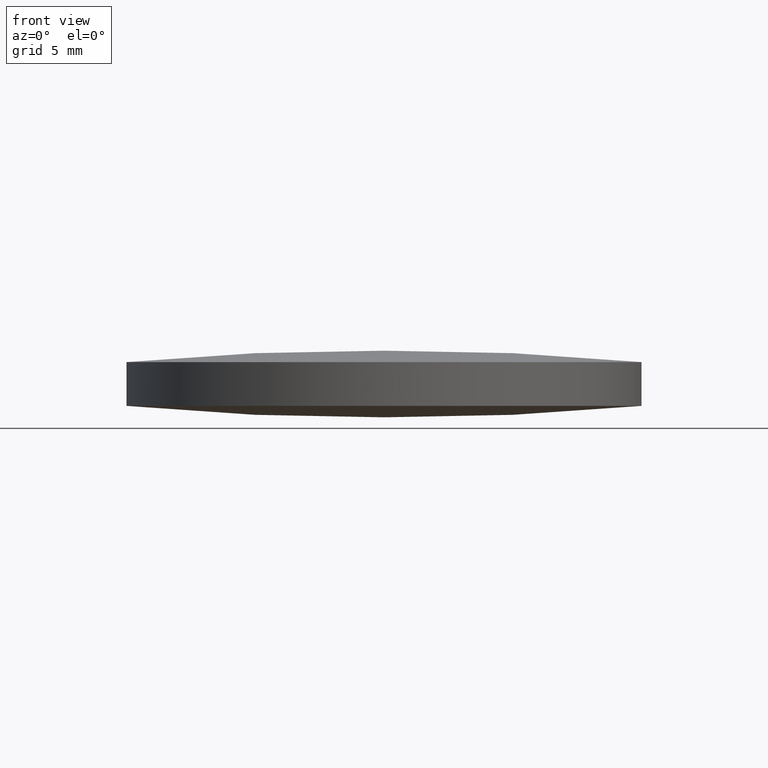
[diagram: clean part render]
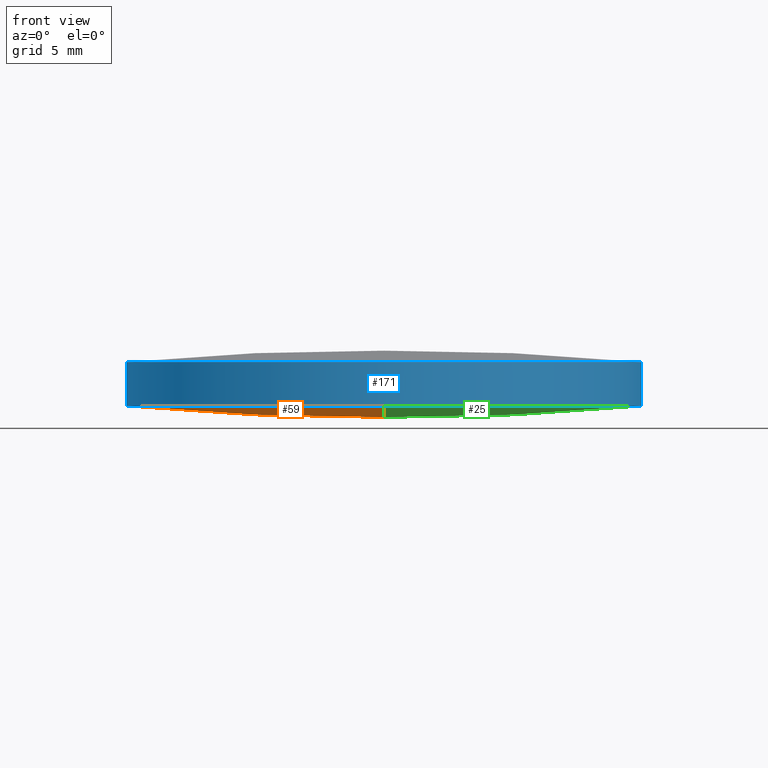
[diagram: same view with three faces highlighted in distinct colors, each labeled with its STEP entity id]
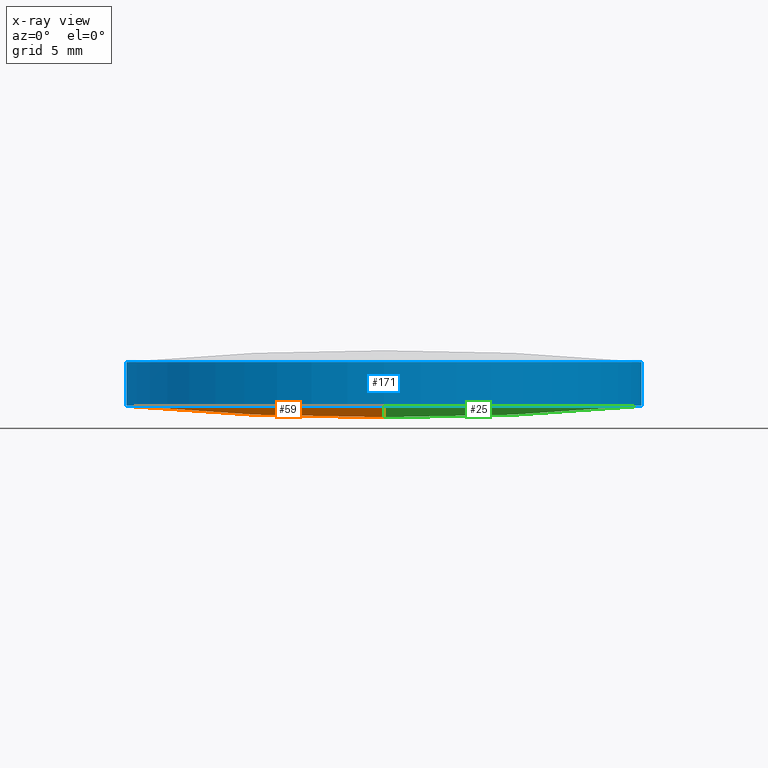
[diagram: x-ray of the same camera — body ghosted, the three highlighted faces saturated]
A machine part, front view with three faces highlighted in distinct colors.
The next image is the same camera in x-ray (body ghosted, the three faces saturated) — at least one of them is partly hidden behind the body in this view.
Their STEP definitions:

[orange] entity #59 — the highlighted face is a freeform B-spline surface patch.
#6 = CARTESIAN_POINT ( 'NONE',  ( -12.73626367471861600, -19.27793817985586200, 1.197211413003954200 ) ) ;
#12 = CARTESIAN_POINT ( 'NONE',  ( 1.422473250300982100E-013, 6.444724679720232000, -0.3013374258179613000 ) ) ;
#13 = CARTESIAN_POINT ( 'NONE',  ( -19.19192373488753800, -6.444724679720267500, 0.5906956180220642700 ) ) ;
#18 =( BOUNDED_SURFACE ( )  B_SPLINE_SURFACE ( 3, 3, ( 
 ( #174, #6, #205, #259 ),
 ( #13, #261, #287, #131 ),
 ( #207, #229, #184, #12 ),
 ( #159, #132, #155, #67 ) ),
 .UNSPECIFIED., .F., .F., .T. ) 
 B_SPLINE_SURFACE_WITH_KNOTS ( ( 4, 4 ),
 ( 4, 4 ),
 ( 0.0000000000000000000, 1.000000000000000000 ),
 ( 0.0000000000000000000, 1.000000000000000000 ),
 .UNSPECIFIED. ) 
 GEOMETRIC_REPRESENTATION_ITEM ( )  RATIONAL_B_SPLINE_SURFACE ( (
 ( 1.000000000000000000, 0.9992810467765541600, 0.9992810467765541600, 1.000000000000000000),
 ( 0.9970913751375676300, 0.9963745130793424400, 0.9963745130793424400, 0.9970913751375676300),
 ( 0.9970913751375676300, 0.9963745130793424400, 0.9963745130793424400, 0.9970913751375676300),
 ( 1.000000000000000000, 0.9992810467765541600, 0.9992810467765541600, 1.000000000000000000) ) ) 
 REPRESENTATION_ITEM ( '' )  SURFACE ( )  );
#26 = DIRECTION ( 'NONE',  ( 1.000000000000000000, 0.0000000000000000000, -5.691349986800548400E-018 ) ) ;
#34 = VERTEX_POINT ( 'NONE', #128 ) ;
#38 = CARTESIAN_POINT ( 'NONE',  ( 1.884043759237314700E-013, 19.04999999999994700, 0.8801480167750022100 ) ) ;
#59 = ADVANCED_FACE ( 'NONE', ( #216 ), #18, .T. ) ;
#67 = CARTESIAN_POINT ( 'NONE',  ( 1.353084311261909500E-013, 19.27793817985582700, 0.9013828448677929700 ) ) ;
#76 = ORIENTED_EDGE ( 'NONE', *, *, #91, .T. ) ;
#88 = CIRCLE ( 'NONE', #204, 206.5999999999999900 ) ;
#91 = EDGE_CURVE ( 'NONE', #103, #249, #289, .T. ) ;
#103 = VERTEX_POINT ( 'NONE', #106 ) ;
#106 = CARTESIAN_POINT ( 'NONE',  ( -19.05000000000000400, 1.444773732675583000E-015, 0.8801480167750092000 ) ) ;
#114 = EDGE_CURVE ( 'NONE', #34, #249, #88, .T. ) ;
#122 = CIRCLE ( 'NONE', #158, 19.05000000000000100 ) ;
#128 = CARTESIAN_POINT ( 'NONE',  ( 1.991220114042387200E-013, -19.05000000000000400, 0.8801480167750022100 ) ) ;
#131 = CARTESIAN_POINT ( 'NONE',  ( 1.491862189340054100E-013, -6.444724679720261300, -0.3013374258179558100 ) ) ;
#132 = CARTESIAN_POINT ( 'NONE',  ( -12.73626367471863000, 19.27793817985582700, 1.197211413003954000 ) ) ;
#138 = EDGE_LOOP ( 'NONE', ( #246, #188, #76 ) ) ;
#140 = DIRECTION ( 'NONE',  ( 1.000000000000000000, 0.0000000000000000000, -5.691349986800548400E-018 ) ) ;
#155 = CARTESIAN_POINT ( 'NONE',  ( -6.371567481593718400, 19.27793817985582300, 0.9013828448677914100 ) ) ;
#158 = AXIS2_PLACEMENT_3D ( 'NONE', #223, #197, #26 ) ;
#159 = CARTESIAN_POINT ( 'NONE',  ( -19.08036082284170100, 19.27793817985582300, 1.788230488568326400 ) ) ;
#174 = CARTESIAN_POINT ( 'NONE',  ( -19.08036082284168700, -19.27793817985586600, 1.788230488568326400 ) ) ;
#184 = CARTESIAN_POINT ( 'NONE',  ( -6.408822050788873300, 6.444724679720230200, -0.3013374258179630800 ) ) ;
#188 = ORIENTED_EDGE ( 'NONE', *, *, #215, .T. ) ;
#192 = DIRECTION ( 'NONE',  ( 1.000000000000000000, 2.813027685172509800E-016, 5.274068804094820100E-016 ) ) ;
#197 = DIRECTION ( 'NONE',  ( -5.827942386483759700E-018, -2.717192996813919900E-034, -1.000000000000000000 ) ) ;
#204 = AXIS2_PLACEMENT_3D ( 'NONE', #217, #192, #212 ) ;
#205 = CARTESIAN_POINT ( 'NONE',  ( -6.371567481593705100, -19.27793817985586200, 0.9013828448677917400 ) ) ;
#207 = CARTESIAN_POINT ( 'NONE',  ( -19.19192373488754600, 6.444724679720225800, 0.5906956180220592800 ) ) ;
#212 = DIRECTION ( 'NONE',  ( 2.813027685172511800E-016, -1.000000000000000000, -2.686890185443263700E-016 ) ) ;
#215 = EDGE_CURVE ( 'NONE', #34, #103, #122, .T. ) ;
#216 = FACE_OUTER_BOUND ( 'NONE', #138, .T. ) ;
#217 = CARTESIAN_POINT ( 'NONE',  ( 8.526512829121199700E-014, -5.684341886080800200E-014, 206.5999999999999900 ) ) ;
#223 = CARTESIAN_POINT ( 'NONE',  ( -4.662936703425659800E-015, -8.881784197001250400E-016, 0.8801480167750090900 ) ) ;
#229 = CARTESIAN_POINT ( 'NONE',  ( -12.81073263667003400, 6.444724679720227600, -0.003779147387846806400 ) ) ;
#232 = AXIS2_PLACEMENT_3D ( 'NONE', #286, #290, #140 ) ;
#246 = ORIENTED_EDGE ( 'NONE', *, *, #114, .F. ) ;
#249 = VERTEX_POINT ( 'NONE', #38 ) ;
#259 = CARTESIAN_POINT ( 'NONE',  ( 1.491862189340054100E-013, -19.27793817985586200, 0.9013828448677934100 ) ) ;
#261 = CARTESIAN_POINT ( 'NONE',  ( -12.81073263667002700, -6.444724679720265700, -0.003779147387841493400 ) ) ;
#286 = CARTESIAN_POINT ( 'NONE',  ( -4.662936703425659800E-015, -8.881784197001250400E-016, 0.8801480167750090900 ) ) ;
#287 = CARTESIAN_POINT ( 'NONE',  ( -6.408822050788866200, -6.444724679720263100, -0.3013374258179575800 ) ) ;
#289 = CIRCLE ( 'NONE', #232, 19.05000000000000100 ) ;
#290 = DIRECTION ( 'NONE',  ( -5.827942386483759700E-018, -2.717192996813919900E-034, -1.000000000000000000 ) ) ;

[blue] entity #171 — the highlighted cylindrical surface (partial cylindrical patch) has radius 19.05 mm, axis along (0, 0, 1).
#16 = VERTEX_POINT ( 'NONE', #148 ) ;
#19 = CYLINDRICAL_SURFACE ( 'NONE', #73, 19.05000000000000100 ) ;
#26 = DIRECTION ( 'NONE',  ( 1.000000000000000000, 0.0000000000000000000, -5.691349986800548400E-018 ) ) ;
#34 = VERTEX_POINT ( 'NONE', #128 ) ;
#35 = DIRECTION ( 'NONE',  ( -5.827942386483759700E-018, -2.717192996813919900E-034, -1.000000000000000000 ) ) ;
#39 = ORIENTED_EDGE ( 'NONE', *, *, #215, .F. ) ;
#41 = EDGE_CURVE ( 'NONE', #237, #16, #110, .T. ) ;
#43 = CARTESIAN_POINT ( 'NONE',  ( -4.644055895359926400E-015, -8.881784197001250400E-016, 4.119851983224990000 ) ) ;
#50 = CARTESIAN_POINT ( 'NONE',  ( -4.644055895359926400E-015, -8.881784197001250400E-016, 4.119851983224990000 ) ) ;
#57 = ORIENTED_EDGE ( 'NONE', *, *, #41, .T. ) ;
#68 = EDGE_CURVE ( 'NONE', #133, #237, #146, .T. ) ;
#73 = AXIS2_PLACEMENT_3D ( 'NONE', #90, #116, #92 ) ;
#74 = CARTESIAN_POINT ( 'NONE',  ( -19.05000000000000400, 1.444773732675583000E-015, 0.8801480167750090900 ) ) ;
#75 = DIRECTION ( 'NONE',  ( -5.827942386483759700E-018, -2.717192996813919900E-034, -1.000000000000000000 ) ) ;
#84 = VECTOR ( 'NONE', #264, 1000.000000000000000 ) ;
#89 = ORIENTED_EDGE ( 'NONE', *, *, #191, .F. ) ;
#90 = CARTESIAN_POINT ( 'NONE',  ( -4.662936703425659800E-015, -8.881784197001250400E-016, 0.8801480167750089800 ) ) ;
#92 = DIRECTION ( 'NONE',  ( 1.000000000000000000, 0.0000000000000000000, -5.691349986800548400E-018 ) ) ;
#93 = DIRECTION ( 'NONE',  ( 1.000000000000000000, 0.0000000000000000000, -5.691349986800548400E-018 ) ) ;
#94 = VECTOR ( 'NONE', #115, 1000.000000000000000 ) ;
#95 = ORIENTED_EDGE ( 'NONE', *, *, #170, .F. ) ;
#96 = CARTESIAN_POINT ( 'NONE',  ( -1.991220114042385400E-013, -19.05000000000009300, 4.119851983224985600 ) ) ;
#103 = VERTEX_POINT ( 'NONE', #106 ) ;
#106 = CARTESIAN_POINT ( 'NONE',  ( -19.05000000000000400, 1.444773732675583000E-015, 0.8801480167750092000 ) ) ;
#110 = CIRCLE ( 'NONE', #135, 19.05000000000000100 ) ;
#111 = ORIENTED_EDGE ( 'NONE', *, *, #139, .T. ) ;
#115 = DIRECTION ( 'NONE',  ( 5.827942386483759700E-018, 2.717192996813919900E-034, 1.000000000000000000 ) ) ;
#116 = DIRECTION ( 'NONE',  ( 5.827942386483759700E-018, 2.717192996813919900E-034, 1.000000000000000000 ) ) ;
#122 = CIRCLE ( 'NONE', #158, 19.05000000000000100 ) ;
#128 = CARTESIAN_POINT ( 'NONE',  ( 1.991220114042387200E-013, -19.05000000000000400, 0.8801480167750022100 ) ) ;
#133 = VERTEX_POINT ( 'NONE', #275 ) ;
#135 = AXIS2_PLACEMENT_3D ( 'NONE', #43, #150, #233 ) ;
#136 = CARTESIAN_POINT ( 'NONE',  ( 19.04999999999999700, -8.881784197001250400E-016, 0.8801480167750088700 ) ) ;
#139 = EDGE_CURVE ( 'NONE', #177, #133, #141, .T. ) ;
#141 = LINE ( 'NONE', #136, #94 ) ;
#146 = CIRCLE ( 'NONE', #187, 19.05000000000000100 ) ;
#148 = CARTESIAN_POINT ( 'NONE',  ( -19.05000000000000400, 1.444773732675583000E-015, 4.119851983224990000 ) ) ;
#150 = DIRECTION ( 'NONE',  ( -5.827942386483759700E-018, -2.717192996813919900E-034, -1.000000000000000000 ) ) ;
#158 = AXIS2_PLACEMENT_3D ( 'NONE', #223, #197, #26 ) ;
#170 = EDGE_CURVE ( 'NONE', #103, #16, #279, .T. ) ;
#171 = ADVANCED_FACE ( 'NONE', ( #240 ), #19, .T. ) ;
#177 = VERTEX_POINT ( 'NONE', #266 ) ;
#186 = CIRCLE ( 'NONE', #238, 19.05000000000000100 ) ;
#187 = AXIS2_PLACEMENT_3D ( 'NONE', #50, #35, #189 ) ;
#189 = DIRECTION ( 'NONE',  ( 1.000000000000000000, 0.0000000000000000000, 0.0000000000000000000 ) ) ;
#190 = CARTESIAN_POINT ( 'NONE',  ( -4.662936703425659800E-015, -8.881784197001250400E-016, 0.8801480167750090900 ) ) ;
#191 = EDGE_CURVE ( 'NONE', #177, #34, #186, .T. ) ;
#197 = DIRECTION ( 'NONE',  ( -5.827942386483759700E-018, -2.717192996813919900E-034, -1.000000000000000000 ) ) ;
#200 = EDGE_LOOP ( 'NONE', ( #95, #39, #89, #111, #265, #57 ) ) ;
#215 = EDGE_CURVE ( 'NONE', #34, #103, #122, .T. ) ;
#223 = CARTESIAN_POINT ( 'NONE',  ( -4.662936703425659800E-015, -8.881784197001250400E-016, 0.8801480167750090900 ) ) ;
#233 = DIRECTION ( 'NONE',  ( 1.000000000000000000, 0.0000000000000000000, 0.0000000000000000000 ) ) ;
#237 = VERTEX_POINT ( 'NONE', #96 ) ;
#238 = AXIS2_PLACEMENT_3D ( 'NONE', #190, #75, #93 ) ;
#240 = FACE_OUTER_BOUND ( 'NONE', #200, .T. ) ;
#264 = DIRECTION ( 'NONE',  ( 5.827942386483759700E-018, 2.717192996813919900E-034, 1.000000000000000000 ) ) ;
#265 = ORIENTED_EDGE ( 'NONE', *, *, #68, .T. ) ;
#266 = CARTESIAN_POINT ( 'NONE',  ( 19.04999999999999700, -8.881784197001250400E-016, 0.8801480167750089800 ) ) ;
#275 = CARTESIAN_POINT ( 'NONE',  ( 19.04999999999999700, -8.881784197001250400E-016, 4.119851983224990000 ) ) ;
#279 = LINE ( 'NONE', #74, #84 ) ;

[green] entity #25 — the highlighted face is a freeform B-spline surface patch.
#3 = EDGE_CURVE ( 'NONE', #249, #177, #100, .T. ) ;
#10 = CARTESIAN_POINT ( 'NONE',  ( 12.81073263667017400, 6.444724679720206200, -0.003779147387872393600 ) ) ;
#14 = FACE_OUTER_BOUND ( 'NONE', #15, .T. ) ;
#15 = EDGE_LOOP ( 'NONE', ( #51, #195, #123 ) ) ;
#25 = ADVANCED_FACE ( 'NONE', ( #14 ), #118, .T. ) ;
#29 = CARTESIAN_POINT ( 'NONE',  ( 1.991749316508425300E-013, -19.27793817985585900, 0.9013828448677652100 ) ) ;
#30 = CARTESIAN_POINT ( 'NONE',  ( 6.371567481593944000, 19.27793817985578800, 0.9013828448677687600 ) ) ;
#31 = DIRECTION ( 'NONE',  ( 1.000000000000000000, -8.881784197001252300E-016, -5.691349986800548400E-018 ) ) ;
#34 = VERTEX_POINT ( 'NONE', #128 ) ;
#38 = CARTESIAN_POINT ( 'NONE',  ( 1.884043759237314700E-013, 19.04999999999994700, 0.8801480167750022100 ) ) ;
#47 = CARTESIAN_POINT ( 'NONE',  ( 12.73626367471876700, 19.27793817985578800, 1.197211413003924200 ) ) ;
#51 = ORIENTED_EDGE ( 'NONE', *, *, #191, .T. ) ;
#64 = CARTESIAN_POINT ( 'NONE',  ( 19.08036082284174000, 19.27793817985578800, 1.788230488568283800 ) ) ;
#75 = DIRECTION ( 'NONE',  ( -5.827942386483759700E-018, -2.717192996813919900E-034, -1.000000000000000000 ) ) ;
#83 = CARTESIAN_POINT ( 'NONE',  ( 6.371567481593955600, -19.27793817985585500, 0.9013828448677687600 ) ) ;
#88 = CIRCLE ( 'NONE', #204, 206.5999999999999900 ) ;
#93 = DIRECTION ( 'NONE',  ( 1.000000000000000000, 0.0000000000000000000, -5.691349986800548400E-018 ) ) ;
#100 = CIRCLE ( 'NONE', #109, 19.05000000000000100 ) ;
#105 = CARTESIAN_POINT ( 'NONE',  ( 6.408822050789112300, 6.444724679720204500, -0.3013374258179815100 ) ) ;
#109 = AXIS2_PLACEMENT_3D ( 'NONE', #202, #276, #31 ) ;
#114 = EDGE_CURVE ( 'NONE', #34, #249, #88, .T. ) ;
#118 =( BOUNDED_SURFACE ( )  B_SPLINE_SURFACE ( 3, 3, ( 
 ( #29, #83, #251, #280 ),
 ( #199, #255, #253, #130 ),
 ( #203, #105, #10, #153 ),
 ( #278, #30, #47, #64 ) ),
 .UNSPECIFIED., .F., .F., .T. ) 
 B_SPLINE_SURFACE_WITH_KNOTS ( ( 4, 4 ),
 ( 4, 4 ),
 ( 0.0000000000000000000, 1.000000000000000000 ),
 ( 0.0000000000000000000, 1.000000000000000000 ),
 .UNSPECIFIED. ) 
 GEOMETRIC_REPRESENTATION_ITEM ( )  RATIONAL_B_SPLINE_SURFACE ( (
 ( 1.000000000000000000, 0.9992810467765543800, 0.9992810467765543800, 1.000000000000000000),
 ( 0.9970913751375676300, 0.9963745130793426600, 0.9963745130793426600, 0.9970913751375676300),
 ( 0.9970913751375676300, 0.9963745130793426600, 0.9963745130793426600, 0.9970913751375676300),
 ( 1.000000000000000000, 0.9992810467765543800, 0.9992810467765543800, 1.000000000000000000) ) ) 
 REPRESENTATION_ITEM ( '' )  SURFACE ( )  );
#123 = ORIENTED_EDGE ( 'NONE', *, *, #3, .T. ) ;
#128 = CARTESIAN_POINT ( 'NONE',  ( 1.991220114042387200E-013, -19.05000000000000400, 0.8801480167750022100 ) ) ;
#130 = CARTESIAN_POINT ( 'NONE',  ( 19.19192373488759500, -6.444724679720271100, 0.5906956180220230800 ) ) ;
#153 = CARTESIAN_POINT ( 'NONE',  ( 19.19192373488759200, 6.444724679720208900, 0.5906956180220207500 ) ) ;
#177 = VERTEX_POINT ( 'NONE', #266 ) ;
#186 = CIRCLE ( 'NONE', #238, 19.05000000000000100 ) ;
#190 = CARTESIAN_POINT ( 'NONE',  ( -4.662936703425659800E-015, -8.881784197001250400E-016, 0.8801480167750090900 ) ) ;
#191 = EDGE_CURVE ( 'NONE', #177, #34, #186, .T. ) ;
#192 = DIRECTION ( 'NONE',  ( 1.000000000000000000, 2.813027685172509800E-016, 5.274068804094820100E-016 ) ) ;
#195 = ORIENTED_EDGE ( 'NONE', *, *, #114, .T. ) ;
#199 = CARTESIAN_POINT ( 'NONE',  ( 1.961992361102490800E-013, -6.444724679720276400, -0.3013374258179825600 ) ) ;
#202 = CARTESIAN_POINT ( 'NONE',  ( -4.662936703425659800E-015, -8.881784197001250400E-016, 0.8801480167750090900 ) ) ;
#203 = CARTESIAN_POINT ( 'NONE',  ( 1.925733983207755500E-013, 6.444724679720203600, -0.3013374258179849500 ) ) ;
#204 = AXIS2_PLACEMENT_3D ( 'NONE', #217, #192, #212 ) ;
#212 = DIRECTION ( 'NONE',  ( 2.813027685172511800E-016, -1.000000000000000000, -2.686890185443263700E-016 ) ) ;
#217 = CARTESIAN_POINT ( 'NONE',  ( 8.526512829121199700E-014, -5.684341886080800200E-014, 206.5999999999999900 ) ) ;
#238 = AXIS2_PLACEMENT_3D ( 'NONE', #190, #75, #93 ) ;
#249 = VERTEX_POINT ( 'NONE', #38 ) ;
#251 = CARTESIAN_POINT ( 'NONE',  ( 12.73626367471877400, -19.27793817985585500, 1.197211413003924400 ) ) ;
#253 = CARTESIAN_POINT ( 'NONE',  ( 12.81073263667017800, -6.444724679720271100, -0.003779147387870116300 ) ) ;
#255 = CARTESIAN_POINT ( 'NONE',  ( 6.408822050789115800, -6.444724679720272000, -0.3013374258179791200 ) ) ;
#266 = CARTESIAN_POINT ( 'NONE',  ( 19.04999999999999700, -8.881784197001250400E-016, 0.8801480167750089800 ) ) ;
#276 = DIRECTION ( 'NONE',  ( -5.827942386483759700E-018, -2.717192996813919900E-034, -1.000000000000000000 ) ) ;
#278 = CARTESIAN_POINT ( 'NONE',  ( 1.883290568882468100E-013, 19.27793817985578400, 0.9013828448677652100 ) ) ;
#280 = CARTESIAN_POINT ( 'NONE',  ( 19.08036082284174700, -19.27793817985585500, 1.788230488568283800 ) ) ;